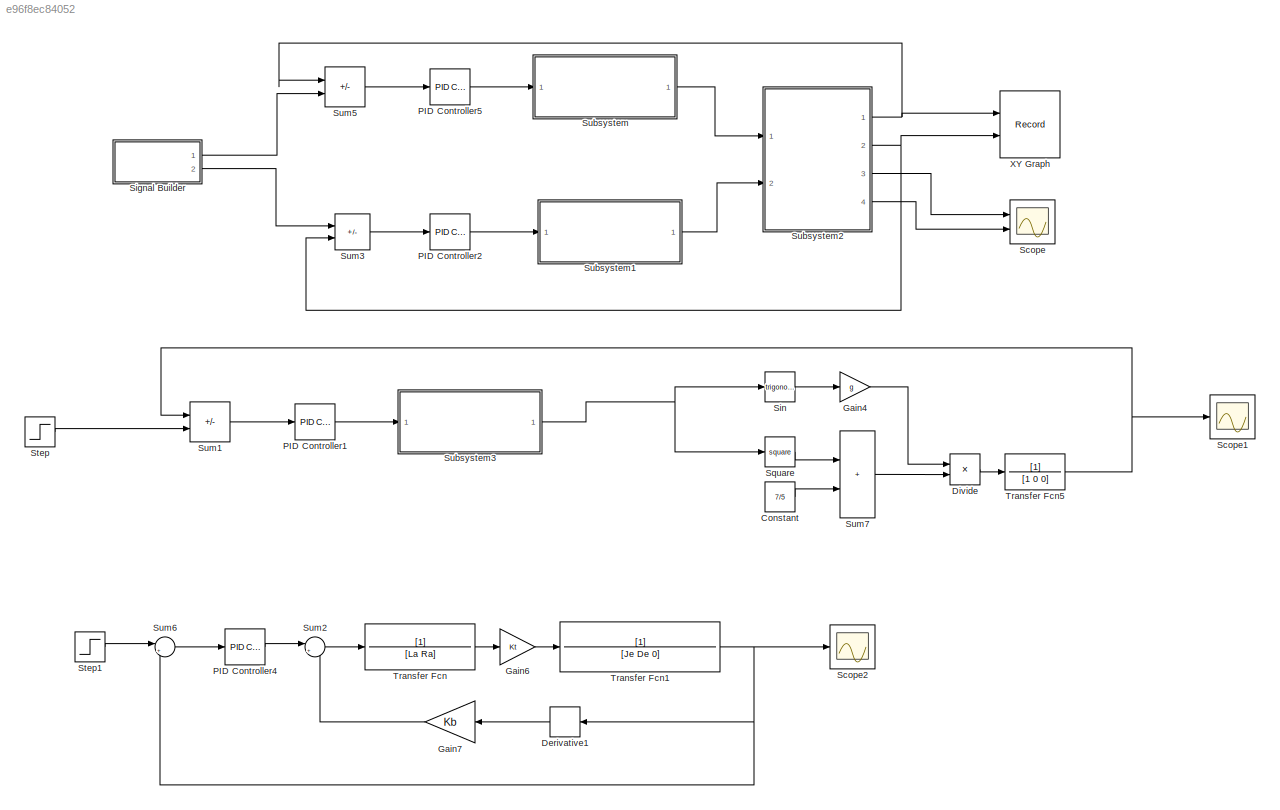
MODEL slx_e96f8ec84052
KIND model
CONFIG AbsTol = 1e-3
CONFIG EnableMultiTasking = on
CONFIG FixedStep = auto
CONFIG MaxStep = auto
CONFIG MinStep = auto
CONFIG RelTol = 1e-3
CONFIG SampleTimeConstraint = Unconstrained
CONFIG SolverName = VariableStepAuto
CONFIG StartTime = 0.0
CONFIG StopTime = 20
BLOCK [Constant] Constant
  Value = 7/5
BLOCK [Derivative] Derivative1
  NameLocation = top
BLOCK [Product] Divide
  Inputs = */
  Ports = [2, 1]
BLOCK [Gain] Gain4
  Gain = g
BLOCK [Gain] Gain6
  Gain = Kt
BLOCK [Gain] Gain7
  Gain = Kb
  NameLocation = top
BLOCK [Reference] PID Controller1  REF=slpidlib/PID Controller
  Ports = [1, 1]
  SourceBlock = slpidlib/PID Controller
  SourceProductBaseCode = SL
  SourceType = PID 1dof
BLOCK [Reference] PID Controller2  REF=slpidlib/PID Controller
  Ports = [1, 1]
  SourceBlock = slpidlib/PID Controller
  SourceProductBaseCode = SL
  SourceType = PID 1dof
BLOCK [Reference] PID Controller4  REF=slpidlib/PID Controller
  Ports = [1, 1]
  SourceBlock = slpidlib/PID Controller
  SourceProductBaseCode = SL
  SourceType = PID 1dof
BLOCK [Reference] PID Controller5  REF=slpidlib/PID Controller
  Ports = [1, 1]
  SourceBlock = slpidlib/PID Controller
  SourceProductBaseCode = SL
  SourceType = PID 1dof
BLOCK [Scope] Scope
  Floating = off
  NumInputPorts = 2
  Ports = [2]
  ScopeSpecificationString = Simulink.scopes.TimeScopeBlockCfg('CurrentConfiguration', extmgr.ConfigurationSet(extmgr.Configuration('Core','General UI',true),extmgr.Configuration('Core','Source UI',true),extmgr.Configuration('Sources','WiredSimulink',true),extmgr.Configuration('Visuals','Time Domain',true,'SerializedDisplays',{struct('MinYLimReal','-40.58993','MaxYLimReal','40.75115','YLabelReal','','MinYLimMag','0.00000','Ma...<+1353ch>
BLOCK [Scope] Scope1
  Floating = off
  NumInputPorts = 1
  Ports = [1]
  ScopeSpecificationString = Simulink.scopes.TimeScopeBlockCfg('CurrentConfiguration', extmgr.ConfigurationSet(extmgr.Configuration('Core','General UI',true,'FigureColor',[1 1 1]),extmgr.Configuration('Core','Source UI',true),extmgr.Configuration('Sources','WiredSimulink',true,'DataLoggingVariableName','ScopeData1'),extmgr.Configuration('Visuals','Time Domain',true,'SerializedDisplays',{struct('MinYLimReal','-0.02361','MaxYLi...<+1543ch>
BLOCK [Scope] Scope2
  Floating = off
  NumInputPorts = 1
  Ports = [1]
  ScopeSpecificationString = Simulink.scopes.TimeScopeBlockCfg('CurrentConfiguration', extmgr.ConfigurationSet(extmgr.Configuration('Core','General UI',true,'FigureColor',[1 1 1]),extmgr.Configuration('Core','Source UI',true),extmgr.Configuration('Sources','WiredSimulink',true,'DataLoggingVariableName','ScopeData1'),extmgr.Configuration('Visuals','Time Domain',true,'SerializedDisplays',{struct('MinYLimReal','-0.12515','MaxYLi...<+1521ch>
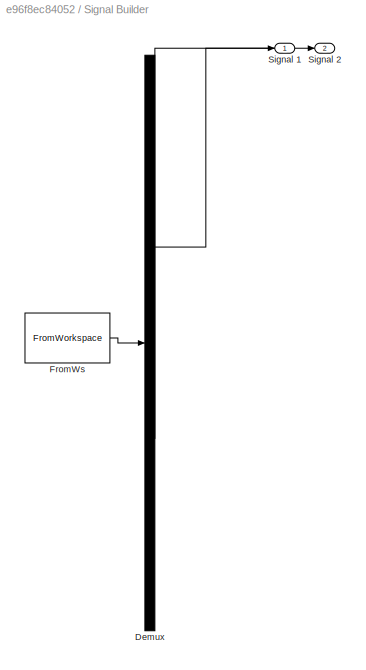
BLOCK [SubSystem] Signal Builder
  ClipboardFcn = sigbuilder_block('clipboard');
  CloseFcn = sigbuilder_block('close');
  ContinueFcn = sigbuilder_block('continue');
  CopyFcn = sigbuilder_block('copy');
  DeleteFcn = sigbuilder_block('delete');
  LoadFcn = sigbuilder_block('load');
  MaskHideContents = on
  ModelCloseFcn = sigbuilder_block('modelClose');
  NameChangeFcn = sigbuilder_block('namechange');
  OpenFcn = sigbuilder_block('open',[6 36 1428 675.75 ]);
  PauseFcn = sigbuilder_block('pause');
  Ports = [0, 2]
  PreSaveFcn = sigbuilder_block('preSave');
  RequestExecContextInheritance = off
  StartFcn = sigbuilder_block('start');
  StopFcn = sigbuilder_block('stop');
  Tag = STV Subsys
BLOCK [Demux] Signal Builder/Demux
  DisplayOption = none
  Outputs = 2
  Ports = [1, 2]
  Tag = STV Demux
BLOCK [FromWorkspace] Signal Builder/FromWs
  Tag = STV FromWs
  VariableName = tuvar
BLOCK [Outport] Signal Builder/Signal 1
  Tag = STV Outport
BLOCK [Outport] Signal Builder/Signal 2
  Port = 2
  Tag = STV Outport
BLOCK [Trigonometry] Sin
  Ports = [1, 1]
BLOCK [Math] Square
  Operator = square
  Ports = [1, 1]
BLOCK [Step] Step
  After = 0.15
  SampleTime = 0
  Time = 0
BLOCK [Step] Step1
  SampleTime = 0
  Time = 0
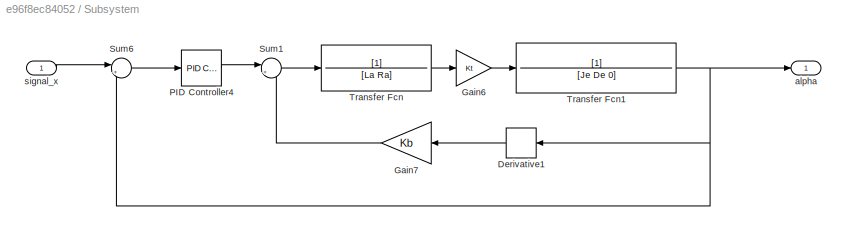
BLOCK [SubSystem] Subsystem
  Ports = [1, 1]
  RequestExecContextInheritance = off
BLOCK [Derivative] Subsystem/Derivative1
  NameLocation = top
BLOCK [Gain] Subsystem/Gain6
  Gain = Kt
BLOCK [Gain] Subsystem/Gain7
  Gain = Kb
  NameLocation = top
BLOCK [Reference] Subsystem/PID Controller4  REF=slpidlib/PID Controller
  Ports = [1, 1]
  SourceBlock = slpidlib/PID Controller
  SourceProductBaseCode = SL
  SourceType = PID 1dof
BLOCK [Sum] Subsystem/Sum1
  Inputs = |+-
  Ports = [2, 1]
BLOCK [Sum] Subsystem/Sum6
  Inputs = |+-
  Ports = [2, 1]
BLOCK [TransferFcn] Subsystem/Transfer Fcn
  Denominator = [La Ra]
BLOCK [TransferFcn] Subsystem/Transfer Fcn1
  Denominator = [Je De 0]
BLOCK [Outport] Subsystem/alpha
BLOCK [Inport] Subsystem/signal_x
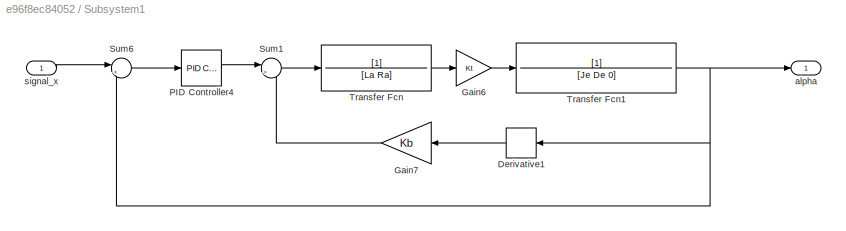
BLOCK [SubSystem] Subsystem1
  Ports = [1, 1]
  RequestExecContextInheritance = off
BLOCK [Derivative] Subsystem1/Derivative1
  NameLocation = top
BLOCK [Gain] Subsystem1/Gain6
  Gain = Kt
BLOCK [Gain] Subsystem1/Gain7
  Gain = Kb
  NameLocation = top
BLOCK [Reference] Subsystem1/PID Controller4  REF=slpidlib/PID Controller
  Ports = [1, 1]
  SourceBlock = slpidlib/PID Controller
  SourceProductBaseCode = SL
  SourceType = PID 1dof
BLOCK [Sum] Subsystem1/Sum1
  Inputs = |+-
  Ports = [2, 1]
BLOCK [Sum] Subsystem1/Sum6
  Inputs = |+-
  Ports = [2, 1]
BLOCK [TransferFcn] Subsystem1/Transfer Fcn
  Denominator = [La Ra]
BLOCK [TransferFcn] Subsystem1/Transfer Fcn1
  Denominator = [Je De 0]
BLOCK [Outport] Subsystem1/alpha
BLOCK [Inport] Subsystem1/signal_x
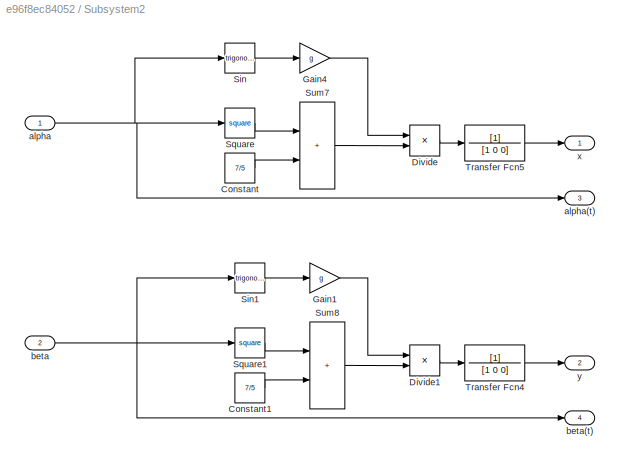
BLOCK [SubSystem] Subsystem2
  Ports = [2, 4]
  RequestExecContextInheritance = off
BLOCK [Constant] Subsystem2/Constant
  Value = 7/5
BLOCK [Constant] Subsystem2/Constant1
  Value = 7/5
BLOCK [Product] Subsystem2/Divide
  Inputs = */
  Ports = [2, 1]
BLOCK [Product] Subsystem2/Divide1
  Inputs = */
  Ports = [2, 1]
BLOCK [Gain] Subsystem2/Gain1
  Gain = g
BLOCK [Gain] Subsystem2/Gain4
  Gain = g
BLOCK [Trigonometry] Subsystem2/Sin
  Ports = [1, 1]
BLOCK [Trigonometry] Subsystem2/Sin1
  Ports = [1, 1]
BLOCK [Math] Subsystem2/Square
  Operator = square
  Ports = [1, 1]
BLOCK [Math] Subsystem2/Square1
  Operator = square
  Ports = [1, 1]
BLOCK [Sum] Subsystem2/Sum7
  IconShape = rectangular
  Ports = [2, 1]
BLOCK [Sum] Subsystem2/Sum8
  IconShape = rectangular
  Ports = [2, 1]
BLOCK [TransferFcn] Subsystem2/Transfer Fcn4
  Denominator = [1 0 0]
BLOCK [TransferFcn] Subsystem2/Transfer Fcn5
  Denominator = [1 0 0]
BLOCK [Inport] Subsystem2/alpha
BLOCK [Outport] Subsystem2/alpha(t)
  Port = 3
BLOCK [Inport] Subsystem2/beta
  Port = 2
BLOCK [Outport] Subsystem2/beta(t)
  Port = 4
BLOCK [Outport] Subsystem2/x
BLOCK [Outport] Subsystem2/y
  Port = 2
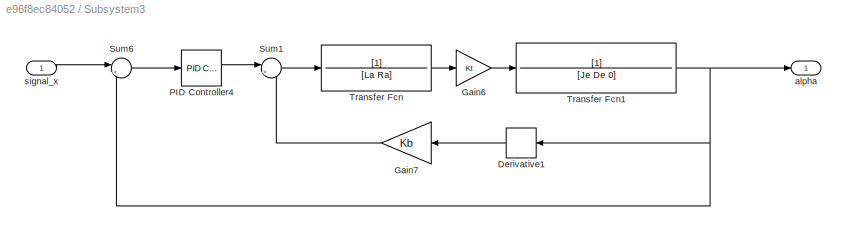
BLOCK [SubSystem] Subsystem3
  Ports = [1, 1]
  RequestExecContextInheritance = off
BLOCK [Derivative] Subsystem3/Derivative1
  NameLocation = top
BLOCK [Gain] Subsystem3/Gain6
  Gain = Kt
BLOCK [Gain] Subsystem3/Gain7
  Gain = Kb
  NameLocation = top
BLOCK [Reference] Subsystem3/PID Controller4  REF=slpidlib/PID Controller
  Ports = [1, 1]
  SourceBlock = slpidlib/PID Controller
  SourceProductBaseCode = SL
  SourceType = PID 1dof
BLOCK [Sum] Subsystem3/Sum1
  Inputs = |+-
  Ports = [2, 1]
BLOCK [Sum] Subsystem3/Sum6
  Inputs = |+-
  Ports = [2, 1]
BLOCK [TransferFcn] Subsystem3/Transfer Fcn
  Denominator = [La Ra]
BLOCK [TransferFcn] Subsystem3/Transfer Fcn1
  Denominator = [Je De 0]
BLOCK [Outport] Subsystem3/alpha
BLOCK [Inport] Subsystem3/signal_x
BLOCK [Sum] Sum1
  IconShape = rectangular
  Inputs = -+
  Ports = [2, 1]
BLOCK [Sum] Sum2
  Inputs = |+-
  Ports = [2, 1]
BLOCK [Sum] Sum3
  IconShape = rectangular
  Inputs = +-
  Ports = [2, 1]
BLOCK [Sum] Sum5
  IconShape = rectangular
  Inputs = -+
  Ports = [2, 1]
BLOCK [Sum] Sum6
  Inputs = |+-
  Ports = [2, 1]
BLOCK [Sum] Sum7
  IconShape = rectangular
  Ports = [2, 1]
BLOCK [TransferFcn] Transfer Fcn
  Denominator = [La Ra]
BLOCK [TransferFcn] Transfer Fcn1
  Denominator = [Je De 0]
BLOCK [TransferFcn] Transfer Fcn5
  Denominator = [1 0 0]
BLOCK [Record] XY Graph
  CompatibilityTag = XY
  FileSettingsInternal = {"entries":[{"content":{"excelSettings":{"content":{},"type":"Streamout.ExcelSettings"}},"type":"Streamout.FileSettingStorage","uuid":"f00087e8-f722-4903-bfe7-c3a97fb5b9cd"}],"packageUris":["http://schema.mathworks.com/mf0/streamout_blocks/R2020a"],"version":"1.0"}
  Layout = [1 1]
  Ports = [2]
  SignalsInternal = {"entries":[{"content":{"signals":[{"content":{"blockPath":["model_matlab_2/XY Graph"],"channel":[],"dimensions":[1],"domain":"model_matlab_2/XY Graph","lineColor":"#a2142f","plots":[1],"port":1,"sid":[""],"signalID":1687,"signalName":"Subsystem2:1"},"type":"RecordBlkView.Signal","uuid":"bb4554b7-277a-4e6c-aaf4-97047ab9d954"},{"content":{"blockPath":["model_matlab_2/XY Graph"],"channel":[],"dimens...<+397ch>
  VisualizationBindings = {"xyplotplugin":{"info":[{"series":[{"bindingParametersList":[{"parameter":"X-Axis","signalID":1687,"signalName":"Subsystem2:1"},{"parameter":"Y-Axis","signalID":1691,"signalName":"Subsystem2:2"}],"seriesID":14644}],"subplotID":1}]}}
LINE Constant:1 -> Sum7:2
LINE Derivative1:1 -> Gain7:1
LINE Divide:1 -> Transfer Fcn5:1
LINE Gain4:1 -> Divide:1
LINE Gain6:1 -> Transfer Fcn1:1
LINE Gain7:1 -> Sum2:2
LINE PID Controller1:1 -> Subsystem3:1
LINE PID Controller2:1 -> Subsystem1:1
LINE PID Controller4:1 -> Sum2:1
LINE PID Controller5:1 -> Subsystem:1
LINE Signal Builder:1 -> Sum5:2
LINE Signal Builder:2 -> Sum3:1
LINE Sin:1 -> Gain4:1
LINE Square:1 -> Sum7:1
LINE Step1:1 -> Sum6:1
LINE Step:1 -> Sum1:2
LINE Subsystem/Derivative1:1 -> Subsystem/Gain7:1
LINE Subsystem/Gain6:1 -> Subsystem/Transfer Fcn1:1
LINE Subsystem/Gain7:1 -> Subsystem/Sum1:2
LINE Subsystem/PID Controller4:1 -> Subsystem/Sum1:1
LINE Subsystem/Sum1:1 -> Subsystem/Transfer Fcn:1
LINE Subsystem/Sum6:1 -> Subsystem/PID Controller4:1
NET Subsystem/Transfer Fcn1:1 -> Subsystem/Derivative1:1, Subsystem/Sum6:2, Subsystem/alpha:1
LINE Subsystem/Transfer Fcn:1 -> Subsystem/Gain6:1
LINE Subsystem/signal_x:1 -> Subsystem/Sum6:1
LINE Subsystem1/Derivative1:1 -> Subsystem1/Gain7:1
LINE Subsystem1/Gain6:1 -> Subsystem1/Transfer Fcn1:1
LINE Subsystem1/Gain7:1 -> Subsystem1/Sum1:2
LINE Subsystem1/PID Controller4:1 -> Subsystem1/Sum1:1
LINE Subsystem1/Sum1:1 -> Subsystem1/Transfer Fcn:1
LINE Subsystem1/Sum6:1 -> Subsystem1/PID Controller4:1
NET Subsystem1/Transfer Fcn1:1 -> Subsystem1/Derivative1:1, Subsystem1/Sum6:2, Subsystem1/alpha:1
LINE Subsystem1/Transfer Fcn:1 -> Subsystem1/Gain6:1
LINE Subsystem1/signal_x:1 -> Subsystem1/Sum6:1
LINE Subsystem1:1 -> Subsystem2:2
LINE Subsystem2/Constant1:1 -> Subsystem2/Sum8:2
LINE Subsystem2/Constant:1 -> Subsystem2/Sum7:2
LINE Subsystem2/Divide1:1 -> Subsystem2/Transfer Fcn4:1
LINE Subsystem2/Divide:1 -> Subsystem2/Transfer Fcn5:1
LINE Subsystem2/Gain1:1 -> Subsystem2/Divide1:1
LINE Subsystem2/Gain4:1 -> Subsystem2/Divide:1
LINE Subsystem2/Sin1:1 -> Subsystem2/Gain1:1
LINE Subsystem2/Sin:1 -> Subsystem2/Gain4:1
LINE Subsystem2/Square1:1 -> Subsystem2/Sum8:1
LINE Subsystem2/Square:1 -> Subsystem2/Sum7:1
LINE Subsystem2/Sum7:1 -> Subsystem2/Divide:2
LINE Subsystem2/Sum8:1 -> Subsystem2/Divide1:2
LINE Subsystem2/Transfer Fcn4:1 -> Subsystem2/y:1
LINE Subsystem2/Transfer Fcn5:1 -> Subsystem2/x:1
NET Subsystem2/alpha:1 -> Subsystem2/Sin:1, Subsystem2/Square:1, Subsystem2/alpha(t):1
NET Subsystem2/beta:1 -> Subsystem2/Sin1:1, Subsystem2/Square1:1, Subsystem2/beta(t):1
NET Subsystem2:1 -> Sum5:1, XY Graph:1
NET Subsystem2:2 -> Sum3:2, XY Graph:2
LINE Subsystem2:3 -> Scope:1
LINE Subsystem2:4 -> Scope:2
LINE Subsystem3/Derivative1:1 -> Subsystem3/Gain7:1
LINE Subsystem3/Gain6:1 -> Subsystem3/Transfer Fcn1:1
LINE Subsystem3/Gain7:1 -> Subsystem3/Sum1:2
LINE Subsystem3/PID Controller4:1 -> Subsystem3/Sum1:1
LINE Subsystem3/Sum1:1 -> Subsystem3/Transfer Fcn:1
LINE Subsystem3/Sum6:1 -> Subsystem3/PID Controller4:1
NET Subsystem3/Transfer Fcn1:1 -> Subsystem3/Derivative1:1, Subsystem3/Sum6:2, Subsystem3/alpha:1
LINE Subsystem3/Transfer Fcn:1 -> Subsystem3/Gain6:1
LINE Subsystem3/signal_x:1 -> Subsystem3/Sum6:1
NET Subsystem3:1 -> Sin:1, Square:1
LINE Subsystem:1 -> Subsystem2:1
LINE Sum1:1 -> PID Controller1:1
LINE Sum2:1 -> Transfer Fcn:1
LINE Sum3:1 -> PID Controller2:1
LINE Sum5:1 -> PID Controller5:1
LINE Sum6:1 -> PID Controller4:1
LINE Sum7:1 -> Divide:2
NET Transfer Fcn1:1 -> Derivative1:1, Scope2:1, Sum6:2
NET Transfer Fcn5:1 -> Scope1:1, Sum1:1
LINE Transfer Fcn:1 -> Gain6:1
note: NET lines group one-source signal fan-out (src -> all destinations, sorted); 1:1 wires keep LINE
